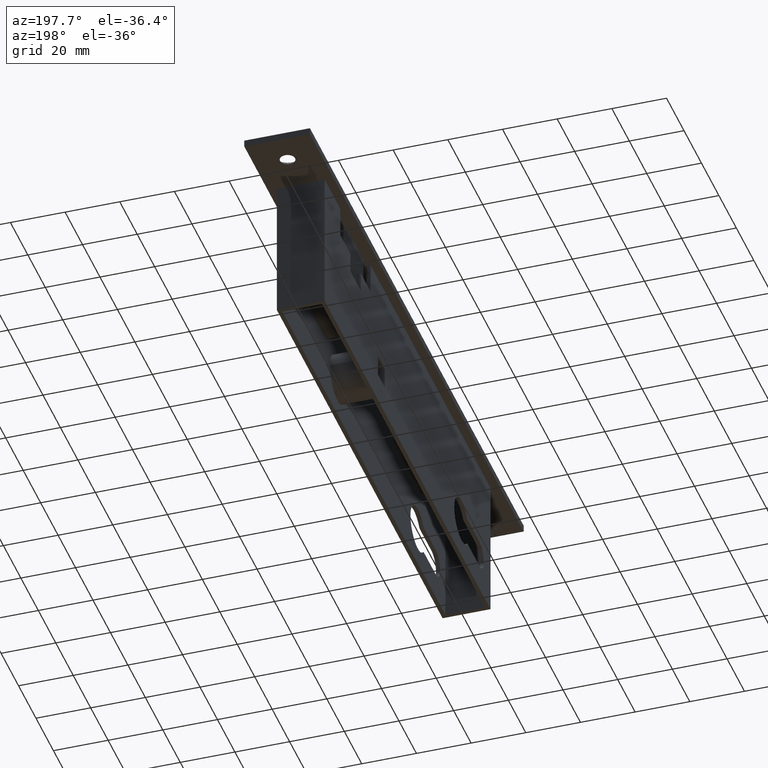
[diagram: clean part render]
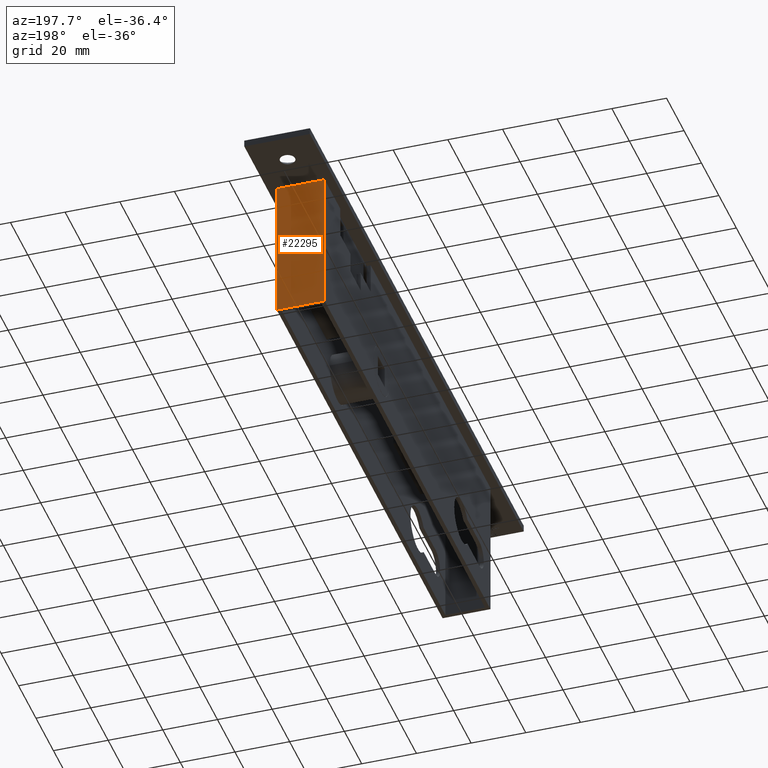
[diagram: same view with one face highlighted and labeled with its STEP entity id]
A machine part, auxiliary view. The second image highlights one B-rep face of the part: STEP entity #22295.
In plain terms, the highlighted planar face has unit normal (0, -1, -0).
Its self-contained STEP definition (entity closure, byte-faithful):
#307 = CARTESIAN_POINT ( 'NONE',  ( 8.749999999999978700, 217.8999999999999800, -52.50000000000000000 ) ) ;
#460 = ORIENTED_EDGE ( 'NONE', *, *, #4637, .F. ) ;
#2059 = EDGE_CURVE ( 'NONE', #19139, #21592, #2698, .T. ) ;
#2345 = VECTOR ( 'NONE', #7549, 1000.000000000000000 ) ;
#2698 = LINE ( 'NONE', #13918, #9937 ) ;
#3059 = EDGE_CURVE ( 'NONE', #8421, #11832, #16837, .T. ) ;
#3149 = DIRECTION ( 'NONE',  ( -0.0000000000000000000, -0.0000000000000000000, 1.000000000000000000 ) ) ;
#4637 = EDGE_CURVE ( 'NONE', #8421, #19139, #8769, .T. ) ;
#5430 = DIRECTION ( 'NONE',  ( 1.000000000000000000, -0.0000000000000000000, -0.0000000000000000000 ) ) ;
#7456 = AXIS2_PLACEMENT_3D ( 'NONE', #7822, #18549, #20517 ) ;
#7549 = DIRECTION ( 'NONE',  ( 1.000000000000000000, -0.0000000000000000000, -0.0000000000000000000 ) ) ;
#7822 = CARTESIAN_POINT ( 'NONE',  ( 8.749999999999978700, 217.8999999999999800, -52.50000000000000000 ) ) ;
#8421 = VERTEX_POINT ( 'NONE', #18169 ) ;
#8754 = EDGE_LOOP ( 'NONE', ( #9510, #16946, #460, #22261 ) ) ;
#8769 = LINE ( 'NONE', #307, #19331 ) ;
#9510 = ORIENTED_EDGE ( 'NONE', *, *, #10416, .T. ) ;
#9937 = VECTOR ( 'NONE', #11828, 1000.000000000000000 ) ;
#10416 = EDGE_CURVE ( 'NONE', #11832, #21592, #13472, .T. ) ;
#11828 = DIRECTION ( 'NONE',  ( -0.0000000000000000000, -0.0000000000000000000, 1.000000000000000000 ) ) ;
#11832 = VERTEX_POINT ( 'NONE', #20986 ) ;
#12302 = VECTOR ( 'NONE', #3149, 1000.000000000000000 ) ;
#12380 = CARTESIAN_POINT ( 'NONE',  ( 8.749999999999978700, 217.8999999999999800, 0.0000000000000000000 ) ) ;
#12689 = CARTESIAN_POINT ( 'NONE',  ( 8.749999999999978700, 217.8999999999999800, 0.0000000000000000000 ) ) ;
#13472 = LINE ( 'NONE', #12380, #2345 ) ;
#13918 = CARTESIAN_POINT ( 'NONE',  ( 8.749999999999978700, 217.8999999999999800, -52.50000000000000000 ) ) ;
#16755 = PLANE ( 'NONE',  #7456 ) ;
#16837 = LINE ( 'NONE', #20851, #12302 ) ;
#16946 = ORIENTED_EDGE ( 'NONE', *, *, #2059, .F. ) ;
#18169 = CARTESIAN_POINT ( 'NONE',  ( -8.749999999999978700, 217.8999999999999800, -52.50000000000000000 ) ) ;
#18549 = DIRECTION ( 'NONE',  ( 0.0000000000000000000, -1.000000000000000000, -0.0000000000000000000 ) ) ;
#19139 = VERTEX_POINT ( 'NONE', #19871 ) ;
#19331 = VECTOR ( 'NONE', #5430, 1000.000000000000000 ) ;
#19871 = CARTESIAN_POINT ( 'NONE',  ( 8.749999999999978700, 217.8999999999999800, -52.50000000000000000 ) ) ;
#20404 = FACE_OUTER_BOUND ( 'NONE', #8754, .T. ) ;
#20517 = DIRECTION ( 'NONE',  ( 0.0000000000000000000, 0.0000000000000000000, -1.000000000000000000 ) ) ;
#20851 = CARTESIAN_POINT ( 'NONE',  ( -8.749999999999978700, 217.8999999999999800, -52.50000000000000000 ) ) ;
#20986 = CARTESIAN_POINT ( 'NONE',  ( -8.749999999999978700, 217.8999999999999800, 0.0000000000000000000 ) ) ;
#21592 = VERTEX_POINT ( 'NONE', #12689 ) ;
#22261 = ORIENTED_EDGE ( 'NONE', *, *, #3059, .T. ) ;
#22295 = ADVANCED_FACE ( 'NONE', ( #20404 ), #16755, .F. ) ;